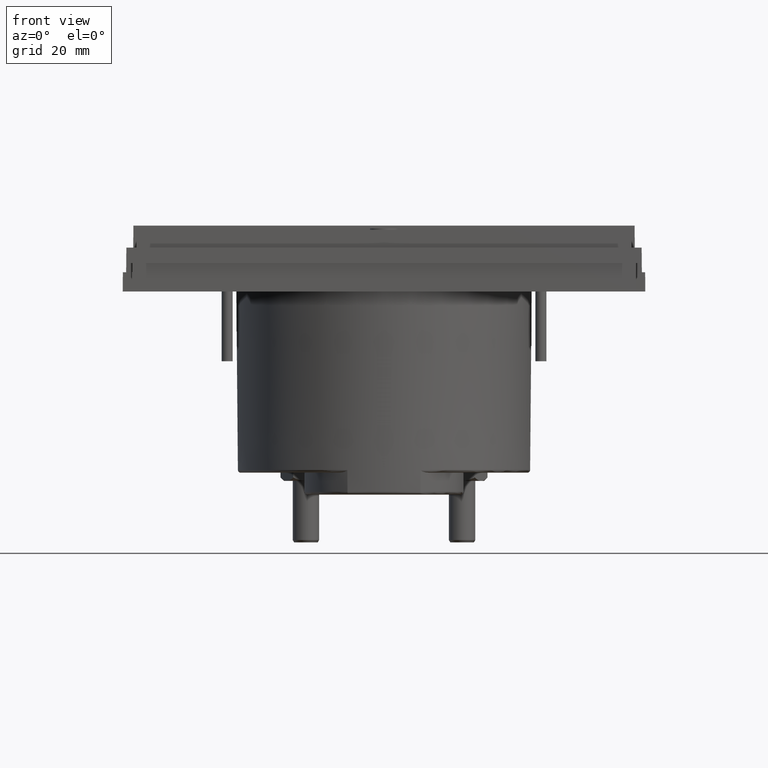
[diagram: clean part render]
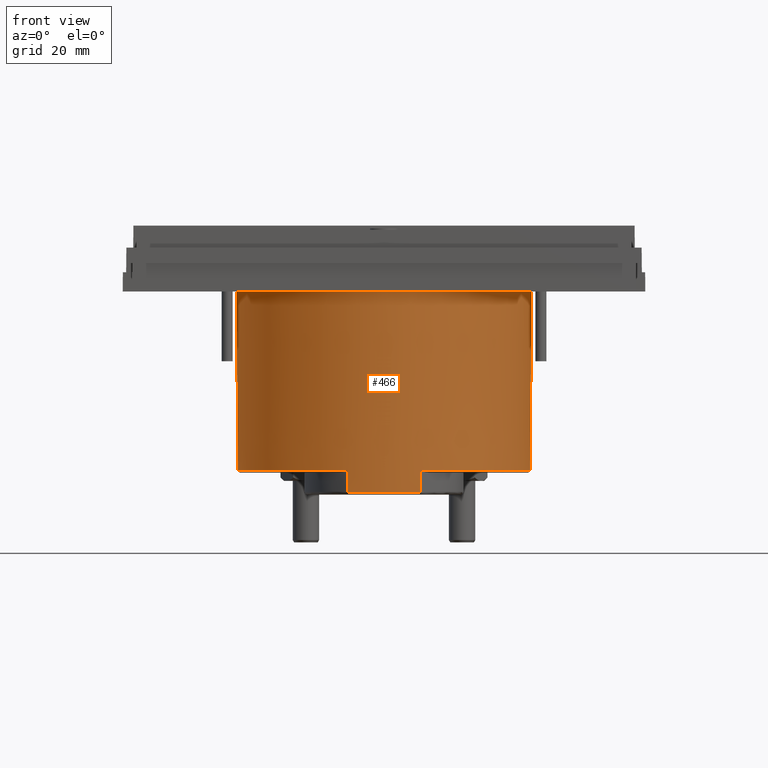
[diagram: same view with one face highlighted and labeled with its STEP entity id]
A machine part, front view. The second image highlights one B-rep face of the part: STEP entity #466.
In plain terms, the highlighted conical surface has half-angle 0.5 deg.
Its self-contained STEP definition (entity closure, byte-faithful):
#83 = CARTESIAN_POINT ( 'NONE',  ( 0.8321481843884499519, -0.6987263472925006047, -1.217363383244857156 ) ) ;
#92 = CIRCLE ( 'NONE', #607, 1.047801500634697458 ) ;
#123 = ORIENTED_EDGE ( 'NONE', *, *, #1587, .T. ) ;
#134 = VERTEX_POINT ( 'NONE', #1556 ) ;
#275 = EDGE_CURVE ( 'NONE', #1325, #4903, #4985, .T. ) ;
#366 = DIRECTION ( 'NONE',  ( 1.000000000000000000, 0.000000000000000000, 0.000000000000000000 ) ) ;
#466 = ADVANCED_FACE ( 'NONE', ( #4547 ), #3231, .T. ) ;
#515 = CARTESIAN_POINT ( 'NONE',  ( -0.4881031258526628003, 0.3150293017077654967, 0.1673228346456485938 ) ) ;
#607 = AXIS2_PLACEMENT_3D ( 'NONE', #1623, #3493, #4310 ) ;
#627 = DIRECTION ( 'NONE',  ( 0.000000000000000000, 0.000000000000000000, 1.000000000000000000 ) ) ;
#689 = AXIS2_PLACEMENT_3D ( 'NONE', #2326, #2303, #366 ) ;
#761 = DIRECTION ( 'NONE',  ( -1.000000000000000000, 0.000000000000000000, -2.610643165447190632E-15 ) ) ;
#856 = AXIS2_PLACEMENT_3D ( 'NONE', #1021, #627, #4225 ) ;
#1021 = CARTESIAN_POINT ( 'NONE',  ( 0.5708661417322835607, 0.3150293017077653857, -1.112376506604422222 ) ) ;
#1168 = B_SPLINE_CURVE_WITH_KNOTS ( 'NONE', 3,
 ( #2616, #3035, #4537, #3343 ),
 .UNSPECIFIED., .F., .F.,
 ( 4, 4 ),
 ( 0.000000000000000000, 1.000000000000000000 ),
 .UNSPECIFIED. ) ;
#1174 = CARTESIAN_POINT ( 'NONE',  ( 1.618667642366981463, 0.3150293017077653857, -1.112376506604422222 ) ) ;
#1233 = DIRECTION ( 'NONE',  ( -0.008726535488402693830, 1.068692375351814446E-18, 0.9999619230642582401 ) ) ;
#1325 = VERTEX_POINT ( 'NONE', #1605 ) ;
#1550 = DIRECTION ( 'NONE',  ( 1.000000000000000000, 0.000000000000000000, 0.000000000000000000 ) ) ;
#1556 = CARTESIAN_POINT ( 'NONE',  ( 1.629835409317230033, 0.3150293017077653857, 0.1673228346456485938 ) ) ;
#1587 = EDGE_CURVE ( 'NONE', #4070, #1325, #2689, .T. ) ;
#1605 = CARTESIAN_POINT ( 'NONE',  ( 0.8319825391645732093, -0.6982959632043463927, -1.269856821563744020 ) ) ;
#1623 = CARTESIAN_POINT ( 'NONE',  ( 0.5708661417322835607, 0.3150293017077653857, -1.112376506604422222 ) ) ;
#1754 = CARTESIAN_POINT ( 'NONE',  ( 1.629835409317230033, 0.3150293017077653857, 0.1673228346456413773 ) ) ;
#1994 = EDGE_CURVE ( 'NONE', #134, #3898, #2439, .T. ) ;
#2199 = EDGE_CURVE ( 'NONE', #4903, #5082, #2863, .T. ) ;
#2225 = EDGE_CURVE ( 'NONE', #2934, #4070, #1168, .T. ) ;
#2303 = DIRECTION ( 'NONE',  ( -0.000000000000000000, -0.000000000000000000, -1.000000000000000000 ) ) ;
#2310 = CARTESIAN_POINT ( 'NONE',  ( -0.4881031258526628003, 0.3150293017077654967, 0.1673228346456413773 ) ) ;
#2326 = CARTESIAN_POINT ( 'NONE',  ( 0.5708661417322835607, 0.3150293017077653857, 0.1673228346456485938 ) ) ;
#2439 = CIRCLE ( 'NONE', #689, 1.058969267584946472 ) ;
#2538 = CARTESIAN_POINT ( 'NONE',  ( 0.8324796692559758293, -0.6995870528491375806, -1.112376506604361825 ) ) ;
#2616 = CARTESIAN_POINT ( 'NONE',  ( 0.3092526142085891272, -0.6995870528491368034, -1.112376506604361825 ) ) ;
#2635 = CARTESIAN_POINT ( 'NONE',  ( 0.3092526142085891272, -0.6995870528491368034, -1.112376506604361825 ) ) ;
#2689 = CIRCLE ( 'NONE', #3276, 1.046427190747959202 ) ;
#2742 = ORIENTED_EDGE ( 'NONE', *, *, #2199, .T. ) ;
#2863 = CIRCLE ( 'NONE', #856, 1.047801500634697458 ) ;
#2865 = CARTESIAN_POINT ( 'NONE',  ( 0.8319825391645732093, -0.6982959632043463927, -1.269856821563744020 ) ) ;
#2890 = CARTESIAN_POINT ( 'NONE',  ( 0.8324796692559758293, -0.6995870528491375806, -1.112376506604361825 ) ) ;
#2934 = VERTEX_POINT ( 'NONE', #2635 ) ;
#2994 = DIRECTION ( 'NONE',  ( 0.000000000000000000, 0.000000000000000000, 1.000000000000000000 ) ) ;
#3035 = CARTESIAN_POINT ( 'NONE',  ( 0.3094183898445348468, -0.6991567107179514906, -1.164869944924641576 ) ) ;
#3094 = LINE ( 'NONE', #2310, #4343 ) ;
#3103 = VECTOR ( 'NONE', #4199, 39.37007874015748854 ) ;
#3163 = CARTESIAN_POINT ( 'NONE',  ( 0.5708661417322835607, 0.3150293017077653857, -1.269856821565069849 ) ) ;
#3231 = CONICAL_SURFACE ( 'NONE', #5055, 1.058969267584946472, 0.008726646250000028721 ) ;
#3262 = ORIENTED_EDGE ( 'NONE', *, *, #3346, .T. ) ;
#3276 = AXIS2_PLACEMENT_3D ( 'NONE', #3163, #4743, #761 ) ;
#3343 = CARTESIAN_POINT ( 'NONE',  ( 0.3097497418993774287, -0.6982959625857373398, -1.269856821565022997 ) ) ;
#3346 = EDGE_CURVE ( 'NONE', #4734, #2934, #92, .T. ) ;
#3379 = EDGE_CURVE ( 'NONE', #4734, #3898, #3094, .T. ) ;
#3425 = ORIENTED_EDGE ( 'NONE', *, *, #275, .T. ) ;
#3442 = ORIENTED_EDGE ( 'NONE', *, *, #2225, .T. ) ;
#3487 = ORIENTED_EDGE ( 'NONE', *, *, #3379, .F. ) ;
#3493 = DIRECTION ( 'NONE',  ( 0.000000000000000000, 0.000000000000000000, 1.000000000000000000 ) ) ;
#3534 = CARTESIAN_POINT ( 'NONE',  ( -0.4769353589024140083, 0.3150293017077654967, -1.112376506604422222 ) ) ;
#3732 = ORIENTED_EDGE ( 'NONE', *, *, #4949, .T. ) ;
#3773 = CARTESIAN_POINT ( 'NONE',  ( 0.5708661417322835607, 0.3150293017077653857, 0.1673228346456413773 ) ) ;
#3898 = VERTEX_POINT ( 'NONE', #515 ) ;
#4070 = VERTEX_POINT ( 'NONE', #5099 ) ;
#4199 = DIRECTION ( 'NONE',  ( 0.008726535488402693830, 0.000000000000000000, 0.9999619230642582401 ) ) ;
#4225 = DIRECTION ( 'NONE',  ( -1.000000000000000000, 0.000000000000000000, -3.650106617344272429E-15 ) ) ;
#4310 = DIRECTION ( 'NONE',  ( -1.000000000000000000, 0.000000000000000000, -3.650106617344272429E-15 ) ) ;
#4343 = VECTOR ( 'NONE', #1233, 39.37007874015748854 ) ;
#4441 = CARTESIAN_POINT ( 'NONE',  ( 0.8323138936200341620, -0.6991567107179510465, -1.164869944924641576 ) ) ;
#4537 = CARTESIAN_POINT ( 'NONE',  ( 0.3095840990761177247, -0.6987263472925007157, -1.217363383244857156 ) ) ;
#4547 = FACE_OUTER_BOUND ( 'NONE', #4993, .T. ) ;
#4562 = LINE ( 'NONE', #1754, #3103 ) ;
#4648 = ORIENTED_EDGE ( 'NONE', *, *, #1994, .T. ) ;
#4734 = VERTEX_POINT ( 'NONE', #3534 ) ;
#4743 = DIRECTION ( 'NONE',  ( 0.000000000000000000, 0.000000000000000000, 1.000000000000000000 ) ) ;
#4903 = VERTEX_POINT ( 'NONE', #2538 ) ;
#4949 = EDGE_CURVE ( 'NONE', #5082, #134, #4562, .T. ) ;
#4985 = B_SPLINE_CURVE_WITH_KNOTS ( 'NONE', 3,
 ( #2865, #83, #4441, #2890 ),
 .UNSPECIFIED., .F., .F.,
 ( 4, 4 ),
 ( 0.000000000000000000, 1.000000000000000000 ),
 .UNSPECIFIED. ) ;
#4993 = EDGE_LOOP ( 'NONE', ( #3487, #3262, #3442, #123, #3425, #2742, #3732, #4648 ) ) ;
#5055 = AXIS2_PLACEMENT_3D ( 'NONE', #3773, #2994, #1550 ) ;
#5082 = VERTEX_POINT ( 'NONE', #1174 ) ;
#5099 = CARTESIAN_POINT ( 'NONE',  ( 0.3097497418993774287, -0.6982959625857373398, -1.269856821565022997 ) ) ;